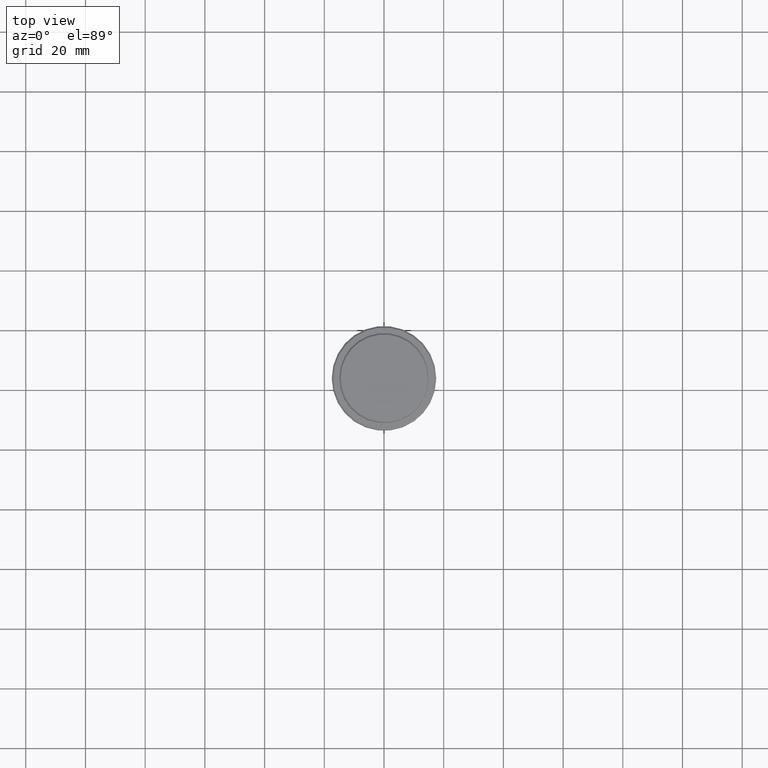
[diagram: clean part render]
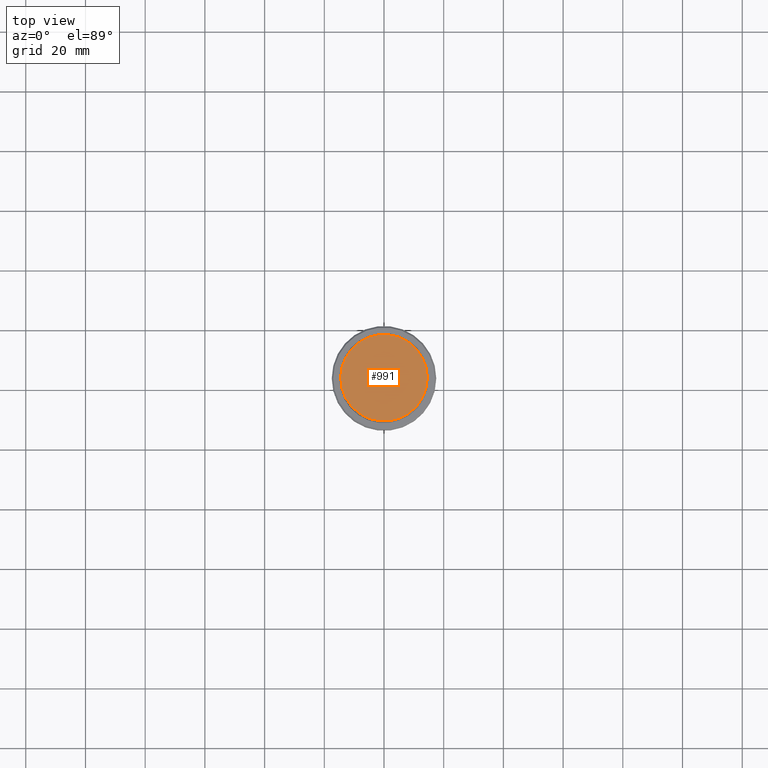
[diagram: same view with one face highlighted and labeled with its STEP entity id]
A machine part, top view. The second image highlights one B-rep face of the part: STEP entity #991.
In plain terms, the highlighted planar face has unit normal (0, -0, 1).
Its self-contained STEP definition (entity closure, byte-faithful):
#191 = ORIENTED_EDGE ( 'NONE', *, *, #715, .T. ) ;
#214 = DIRECTION ( 'NONE',  ( 1.000000000000000000, 0.000000000000000000, 0.000000000000000000 ) ) ;
#215 = CARTESIAN_POINT ( 'NONE',  ( -14.49999999999998401, 0.000000000000000000, 0.000000000000000000 ) ) ;
#273 = DIRECTION ( 'NONE',  ( 1.000000000000000000, 0.000000000000000000, 0.000000000000000000 ) ) ;
#283 = AXIS2_PLACEMENT_3D ( 'NONE', #710, #909, #273 ) ;
#320 = DIRECTION ( 'NONE',  ( -0.000000000000000000, -0.000000000000000000, 1.000000000000000000 ) ) ;
#361 = AXIS2_PLACEMENT_3D ( 'NONE', #871, #320, #214 ) ;
#415 = CARTESIAN_POINT ( 'NONE',  ( 14.49999999999998401, 1.806354028742345013E-15, 0.000000000000000000 ) ) ;
#427 = VERTEX_POINT ( 'NONE', #415 ) ;
#481 = EDGE_CURVE ( 'NONE', #888, #427, #974, .T. ) ;
#608 = DIRECTION ( 'NONE',  ( 1.000000000000000000, 0.000000000000000000, 0.000000000000000000 ) ) ;
#710 = CARTESIAN_POINT ( 'NONE',  ( 0.000000000000000000, 0.000000000000000000, 0.000000000000000000 ) ) ;
#715 = EDGE_CURVE ( 'NONE', #427, #888, #837, .T. ) ;
#837 = CIRCLE ( 'NONE', #902, 14.49999999999998401 ) ;
#871 = CARTESIAN_POINT ( 'NONE',  ( 0.000000000000000000, 0.000000000000000000, 0.000000000000000000 ) ) ;
#888 = VERTEX_POINT ( 'NONE', #215 ) ;
#902 = AXIS2_PLACEMENT_3D ( 'NONE', #1251, #912, #608 ) ;
#909 = DIRECTION ( 'NONE',  ( 0.000000000000000000, -0.000000000000000000, 1.000000000000000000 ) ) ;
#912 = DIRECTION ( 'NONE',  ( -0.000000000000000000, -0.000000000000000000, 1.000000000000000000 ) ) ;
#974 = CIRCLE ( 'NONE', #361, 14.49999999999998401 ) ;
#991 = ADVANCED_FACE ( 'NONE', ( #1017 ), #1263, .T. ) ;
#1017 = FACE_OUTER_BOUND ( 'NONE', #1078, .T. ) ;
#1073 = ORIENTED_EDGE ( 'NONE', *, *, #481, .T. ) ;
#1078 = EDGE_LOOP ( 'NONE', ( #1073, #191 ) ) ;
#1251 = CARTESIAN_POINT ( 'NONE',  ( 0.000000000000000000, 0.000000000000000000, 0.000000000000000000 ) ) ;
#1263 = PLANE ( 'NONE',  #283 ) ;